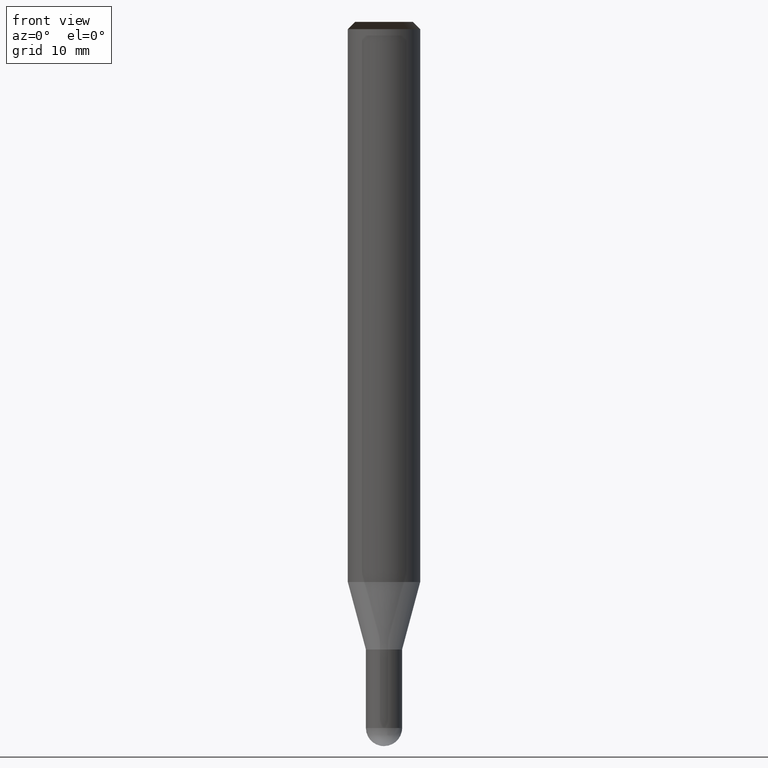
[diagram: clean part render]
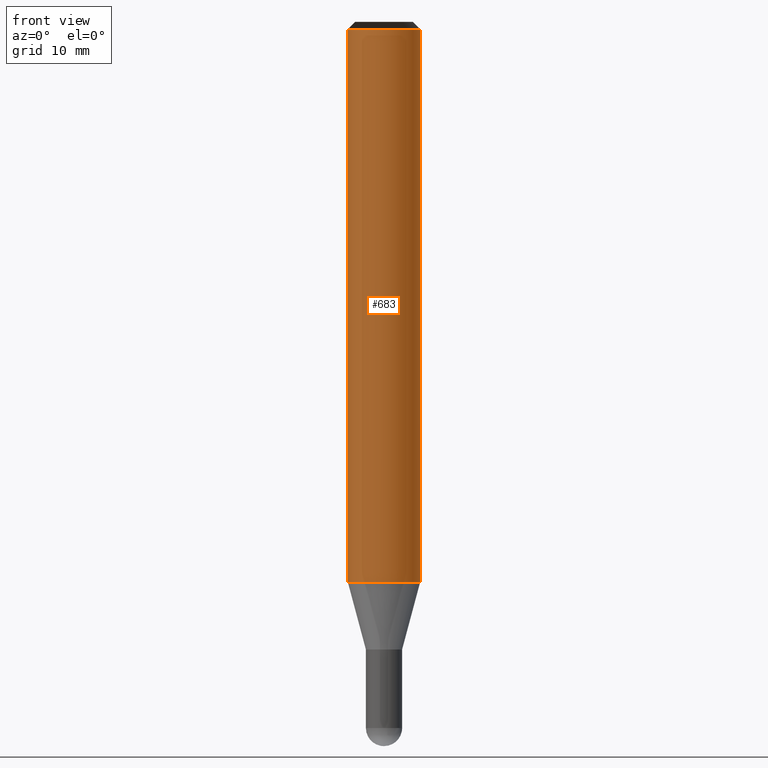
[diagram: same view with one face highlighted and labeled with its STEP entity id]
A machine part, front view. The second image highlights one B-rep face of the part: STEP entity #683.
In plain terms, the highlighted face is a freeform B-spline surface patch.
Its self-contained STEP definition (entity closure, byte-faithful):
#355=CARTESIAN_POINT('',(3.0,0.0,-0.0));
#359=CARTESIAN_POINT('',(-3.0,0.0,-0.0));
#360=CARTESIAN_POINT('',(3.0,0.0,45.801));
#364=CARTESIAN_POINT('',(-3.0,0.0,45.801));
#374=CARTESIAN_POINT('',(-3.0,-3.0,-0.0));
#375=CARTESIAN_POINT('',(0.0,-3.0,-0.0));
#376=CARTESIAN_POINT('',(3.0,-3.0,-0.0));
#377=CARTESIAN_POINT('',(-3.0,-3.0,45.801));
#378=CARTESIAN_POINT('',(0.0,-3.0,45.801));
#379=CARTESIAN_POINT('',(3.0,-3.0,45.801));
#664=(
BOUNDED_SURFACE()
B_SPLINE_SURFACE(1,2,(
(#359,#374,#375,#376,#355),
(#364,#377,#378,#379,#360)
), .UNSPECIFIED.,.F.,.F.,.F.)
B_SPLINE_SURFACE_WITH_KNOTS((2,2),(3,2,3),(
0.0,1.0),(
0.0,0.5,1.0), .UNSPECIFIED.)
GEOMETRIC_REPRESENTATION_ITEM()
RATIONAL_B_SPLINE_SURFACE(((1.0,0.707106781187,1.0,0.707106781187,1.0),
(1.0,0.707106781187,1.0,0.707106781187,1.0)
))
REPRESENTATION_ITEM('')
SURFACE()
);
#665=(
BOUNDED_CURVE()
B_SPLINE_CURVE(1,(#364,#359),.UNSPECIFIED.,.F.,.F.)
B_SPLINE_CURVE_WITH_KNOTS((2,2),
(0.0,1.0),.UNSPECIFIED.)
CURVE()
GEOMETRIC_REPRESENTATION_ITEM()
RATIONAL_B_SPLINE_CURVE((1.0,1.0))
REPRESENTATION_ITEM('')
);
#666=(
BOUNDED_CURVE()
B_SPLINE_CURVE(2,(#359,#374,#375,#376,#355),.UNSPECIFIED.,.F.,.F.)
B_SPLINE_CURVE_WITH_KNOTS((3,2,3),
(0.0,0.5,1.0),.UNSPECIFIED.)
CURVE()
GEOMETRIC_REPRESENTATION_ITEM()
RATIONAL_B_SPLINE_CURVE((1.0,0.707106781187,1.0,0.707106781187,1.0))
REPRESENTATION_ITEM('')
);
#667=(
BOUNDED_CURVE()
B_SPLINE_CURVE(1,(#355,#360),.UNSPECIFIED.,.F.,.F.)
B_SPLINE_CURVE_WITH_KNOTS((2,2),
(0.0,1.0),.UNSPECIFIED.)
CURVE()
GEOMETRIC_REPRESENTATION_ITEM()
RATIONAL_B_SPLINE_CURVE((1.0,1.0))
REPRESENTATION_ITEM('')
);
#668=(
BOUNDED_CURVE()
B_SPLINE_CURVE(2,(#360,#379,#378,#377,#364),.UNSPECIFIED.,.F.,.F.)
B_SPLINE_CURVE_WITH_KNOTS((3,2,3),
(0.0,0.5,1.0),.UNSPECIFIED.)
CURVE()
GEOMETRIC_REPRESENTATION_ITEM()
RATIONAL_B_SPLINE_CURVE((1.0,0.707106781187,1.0,0.707106781187,1.0))
REPRESENTATION_ITEM('')
);
#669=VERTEX_POINT('',#355);
#670=VERTEX_POINT('',#359);
#671=VERTEX_POINT('',#360);
#672=VERTEX_POINT('',#364);
#673=EDGE_CURVE('',#672,#670,#665,.T.);
#674=EDGE_CURVE('',#670,#669,#666,.T.);
#675=EDGE_CURVE('',#669,#671,#667,.T.);
#676=EDGE_CURVE('',#671,#672,#668,.T.);
#677=ORIENTED_EDGE('',*,*,#673,.T.);
#678=ORIENTED_EDGE('',*,*,#674,.T.);
#679=ORIENTED_EDGE('',*,*,#675,.T.);
#680=ORIENTED_EDGE('',*,*,#676,.T.);
#681=EDGE_LOOP('',(#677,#678,#679,#680));
#682=FACE_OUTER_BOUND('',#681,.T.);
#683=ADVANCED_FACE('',(#682),#664,.T.);